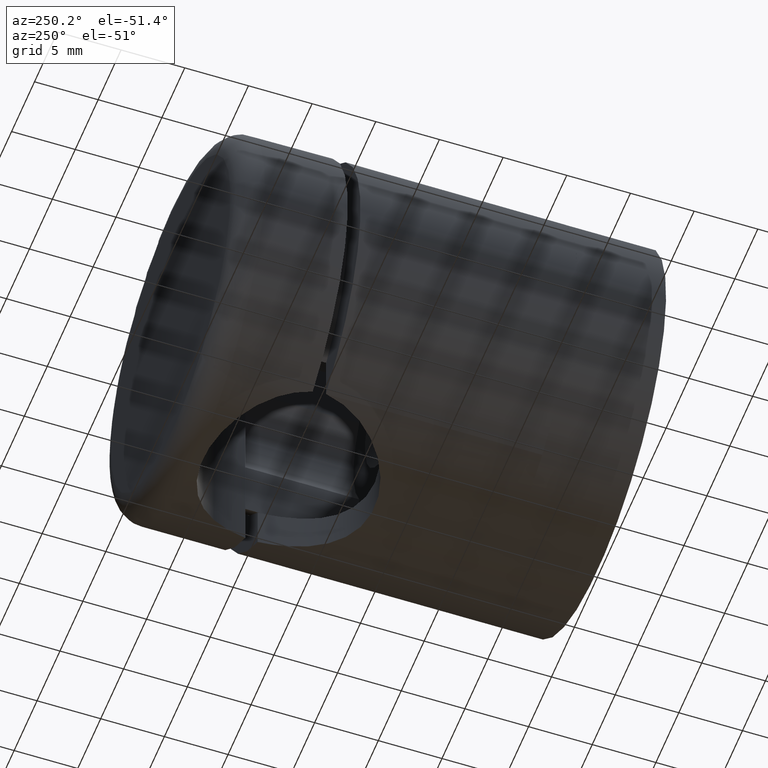
[diagram: clean part render]
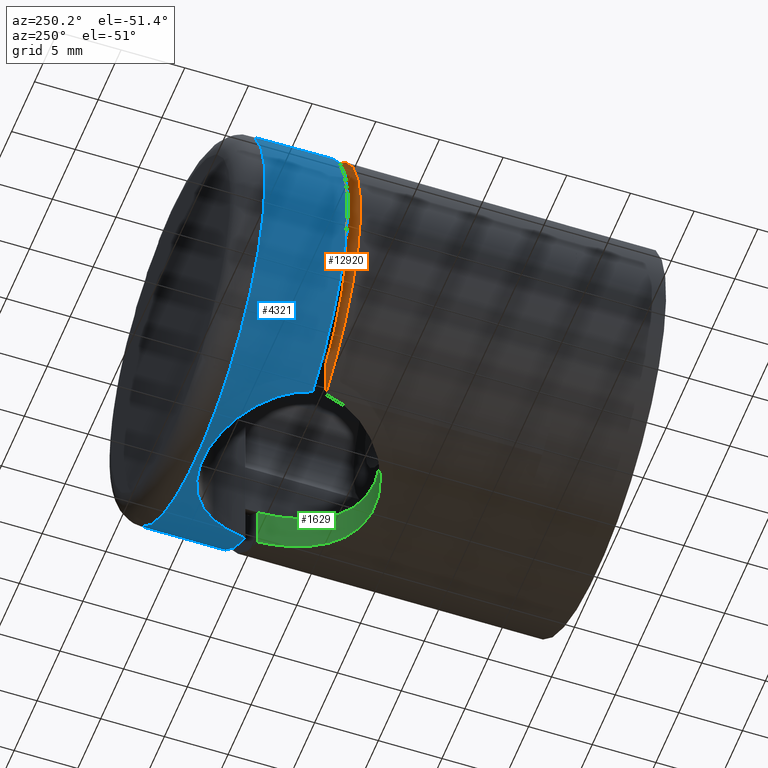
[diagram: same view with three faces highlighted in distinct colors, each labeled with its STEP entity id]
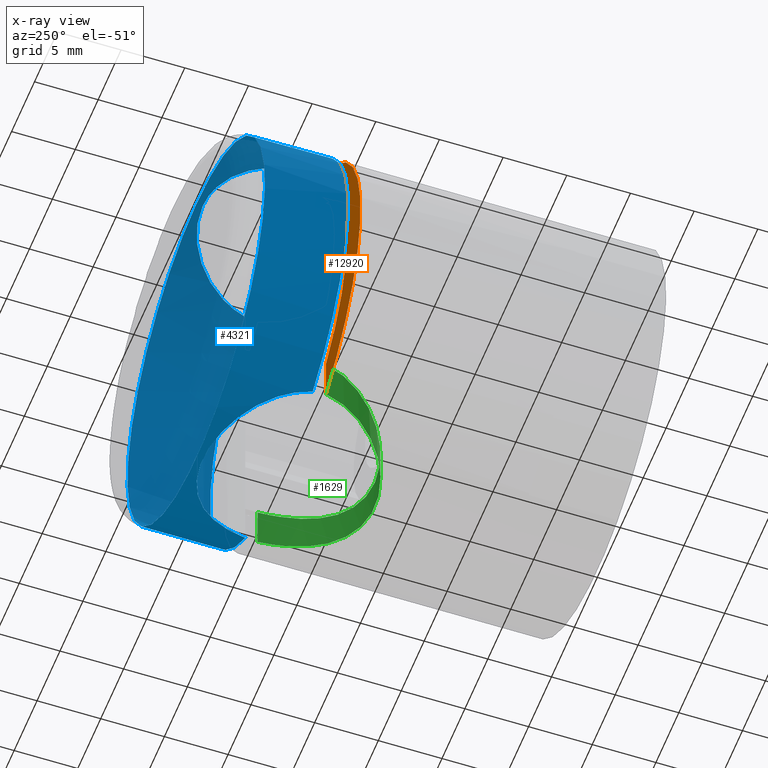
[diagram: x-ray of the same camera — body ghosted, the three highlighted faces saturated]
A machine part, auxiliary view with three faces highlighted in distinct colors.
The next image is the same camera in x-ray (body ghosted, the three faces saturated) — at least one of them is partly hidden behind the body in this view.
Their STEP definitions:

[orange] entity #12920 — the highlighted planar face has unit normal (0, -1, 0).
#237 = CARTESIAN_POINT ( 'NONE',  ( 7.433034373659253000, 0.0000000000000000000, -9.547774609824008600 ) ) ;
#570 = PLANE ( 'NONE',  #14766 ) ;
#1335 = ORIENTED_EDGE ( 'NONE', *, *, #12359, .F. ) ;
#2535 = AXIS2_PLACEMENT_3D ( 'NONE', #12595, #13933, #4831 ) ;
#2692 = DIRECTION ( 'NONE',  ( 0.0000000000000000000, 1.000000000000000000, 0.0000000000000000000 ) ) ;
#3247 = VECTOR ( 'NONE', #15234, 1000.000000000000000 ) ;
#4016 = VERTEX_POINT ( 'NONE', #12044 ) ;
#4831 = DIRECTION ( 'NONE',  ( 0.0000000000000000000, 0.0000000000000000000, 1.000000000000000000 ) ) ;
#4849 = EDGE_CURVE ( 'NONE', #15734, #11691, #14075, .T. ) ;
#5067 = DIRECTION ( 'NONE',  ( 0.0000000000000000000, 0.0000000000000000000, 1.000000000000000000 ) ) ;
#5121 = LINE ( 'NONE', #11222, #3247 ) ;
#5542 = CIRCLE ( 'NONE', #5761, 12.10000000000000000 ) ;
#5627 = VERTEX_POINT ( 'NONE', #10349 ) ;
#5761 = AXIS2_PLACEMENT_3D ( 'NONE', #9242, #2692, #5067 ) ;
#6174 = CARTESIAN_POINT ( 'NONE',  ( 7.433034373659253000, 0.0000000000000000000, -15.00000000000000000 ) ) ;
#7355 = ORIENTED_EDGE ( 'NONE', *, *, #13469, .T. ) ;
#8314 = ORIENTED_EDGE ( 'NONE', *, *, #4849, .T. ) ;
#8382 = CARTESIAN_POINT ( 'NONE',  ( 7.433034373659253000, 0.0000000000000000000, -13.02881422079538300 ) ) ;
#9242 = CARTESIAN_POINT ( 'NONE',  ( 0.0000000000000000000, 0.0000000000000000000, 0.0000000000000000000 ) ) ;
#9700 = FACE_OUTER_BOUND ( 'NONE', #11518, .T. ) ;
#10349 = CARTESIAN_POINT ( 'NONE',  ( 7.433034373659253000, 0.0000000000000000000, 13.02881422079538300 ) ) ;
#11117 = DIRECTION ( 'NONE',  ( 0.0000000000000000000, 1.000000000000000000, 0.0000000000000000000 ) ) ;
#11222 = CARTESIAN_POINT ( 'NONE',  ( 7.433034373659253000, 0.0000000000000000000, -15.00000000000000000 ) ) ;
#11327 = ORIENTED_EDGE ( 'NONE', *, *, #14505, .T. ) ;
#11518 = EDGE_LOOP ( 'NONE', ( #1335, #7355, #11327, #8314 ) ) ;
#11691 = VERTEX_POINT ( 'NONE', #8382 ) ;
#12044 = CARTESIAN_POINT ( 'NONE',  ( 7.433034373659253000, 0.0000000000000000000, 9.547774609824008600 ) ) ;
#12359 = EDGE_CURVE ( 'NONE', #5627, #11691, #12832, .T. ) ;
#12595 = CARTESIAN_POINT ( 'NONE',  ( 0.0000000000000000000, 0.0000000000000000000, 0.0000000000000000000 ) ) ;
#12832 = CIRCLE ( 'NONE', #2535, 15.00000000000000000 ) ;
#12920 = ADVANCED_FACE ( 'NONE', ( #9700 ), #570, .F. ) ;
#13469 = EDGE_CURVE ( 'NONE', #5627, #4016, #5121, .T. ) ;
#13912 = CARTESIAN_POINT ( 'NONE',  ( 0.0000000000000000000, 0.0000000000000000000, 0.0000000000000000000 ) ) ;
#13933 = DIRECTION ( 'NONE',  ( 0.0000000000000000000, 1.000000000000000000, 0.0000000000000000000 ) ) ;
#14072 = DIRECTION ( 'NONE',  ( 0.0000000000000000000, 0.0000000000000000000, -1.000000000000000000 ) ) ;
#14075 = LINE ( 'NONE', #6174, #17233 ) ;
#14505 = EDGE_CURVE ( 'NONE', #4016, #15734, #5542, .T. ) ;
#14766 = AXIS2_PLACEMENT_3D ( 'NONE', #13912, #11117, #16550 ) ;
#15234 = DIRECTION ( 'NONE',  ( 0.0000000000000000000, 0.0000000000000000000, -1.000000000000000000 ) ) ;
#15734 = VERTEX_POINT ( 'NONE', #237 ) ;
#16550 = DIRECTION ( 'NONE',  ( 0.0000000000000000000, -0.0000000000000000000, 1.000000000000000000 ) ) ;
#17233 = VECTOR ( 'NONE', #14072, 1000.000000000000000 ) ;

[blue] entity #4321 — the highlighted cylindrical surface (bore or boss wall) has radius 15 mm, axis along (-0, 1, 0).
#182 = CIRCLE ( 'NONE', #963, 15.00000000000000000 ) ;
#357 = CARTESIAN_POINT ( 'NONE',  ( -1.503368463698542500, 4.149024318443593100, 14.92601065010724400 ) ) ;
#415 = CARTESIAN_POINT ( 'NONE',  ( 4.091665013866998100, 5.200202434037516100, 14.43613998217170100 ) ) ;
#476 = CARTESIAN_POINT ( 'NONE',  ( 1.735602664208009600, 4.190829232350036900, 14.90535735084189600 ) ) ;
#652 = CARTESIAN_POINT ( 'NONE',  ( -6.821182249858579500, 8.352720284030921100, 13.36050096810895300 ) ) ;
#857 = VERTEX_POINT ( 'NONE', #2285 ) ;
#963 = AXIS2_PLACEMENT_3D ( 'NONE', #16579, #16707, #9943 ) ;
#1042 = CARTESIAN_POINT ( 'NONE',  ( -7.348469228349534500, 10.00000000000000000, -13.07669683062201900 ) ) ;
#1206 = CARTESIAN_POINT ( 'NONE',  ( -0.8834642992435368700, 4.049031959658944600, -14.97553482201362800 ) ) ;
#1425 = FACE_OUTER_BOUND ( 'NONE', #17123, .T. ) ;
#1715 = CARTESIAN_POINT ( 'NONE',  ( 5.391195892144267500, 6.281804068180195000, 13.99860655946534200 ) ) ;
#1934 = CARTESIAN_POINT ( 'NONE',  ( 6.637695323378986600, 7.982442895815287500, 13.45365277911962400 ) ) ;
#2046 = CIRCLE ( 'NONE', #16174, 15.00000000000000000 ) ;
#2079 = AXIS2_PLACEMENT_3D ( 'NONE', #4049, #10649, #6278 ) ;
#2223 = CARTESIAN_POINT ( 'NONE',  ( -6.187713023067472000, 7.256518092787146700, 13.66494846481063700 ) ) ;
#2285 = CARTESIAN_POINT ( 'NONE',  ( -7.348469228349534500, 10.00000000000000000, -13.07669683062201900 ) ) ;
#2426 = CARTESIAN_POINT ( 'NONE',  ( -5.089147811766509700, 5.986821562807338500, -14.11122082968626200 ) ) ;
#2537 = CARTESIAN_POINT ( 'NONE',  ( 6.632744577216679500, 7.973704009635684800, -13.45604824839005100 ) ) ;
#2602 = CARTESIAN_POINT ( 'NONE',  ( -1.735602664208009600, 4.190829232350036900, -14.90535735084189600 ) ) ;
#3035 = CARTESIAN_POINT ( 'NONE',  ( -2.136130340471967600, 4.307340999921611200, 14.84863497726011900 ) ) ;
#3199 = VERTEX_POINT ( 'NONE', #6427 ) ;
#3322 = CARTESIAN_POINT ( 'NONE',  ( -7.260820405374386300, 9.570610214310701000, 13.12595121702224100 ) ) ;
#3406 = EDGE_CURVE ( 'NONE', #10531, #10531, #2046, .T. ) ;
#3563 = DIRECTION ( 'NONE',  ( 0.0000000000000000000, 0.0000000000000000000, -1.000000000000000000 ) ) ;
#3690 = CARTESIAN_POINT ( 'NONE',  ( -5.947545410298660700, 6.911622975519836000, -13.77370085782294700 ) ) ;
#3735 = DIRECTION ( 'NONE',  ( -0.0000000000000000000, 1.000000000000000000, -0.0000000000000000000 ) ) ;
#3750 = CARTESIAN_POINT ( 'NONE',  ( -5.535312732355746100, 6.434978974712354500, -13.94210693859108500 ) ) ;
#3790 = VERTEX_POINT ( 'NONE', #12756 ) ;
#4049 = CARTESIAN_POINT ( 'NONE',  ( 0.0000000000000000000, 10.00000000000000000, 0.0000000000000000000 ) ) ;
#4321 = ADVANCED_FACE ( 'NONE', ( #11150, #1425 ), #7007, .T. ) ;
#4473 = CARTESIAN_POINT ( 'NONE',  ( 7.348469228349534500, 10.00000000000000000, 13.07669683062201900 ) ) ;
#4532 = CARTESIAN_POINT ( 'NONE',  ( 5.947545410298660700, 6.911622975519836000, 13.77370085782294700 ) ) ;
#4922 = VERTEX_POINT ( 'NONE', #5030 ) ;
#4952 = ORIENTED_EDGE ( 'NONE', *, *, #9870, .F. ) ;
#4981 = CARTESIAN_POINT ( 'NONE',  ( 7.348469228349534500, 10.00000000000000000, -13.07669683062201900 ) ) ;
#5030 = CARTESIAN_POINT ( 'NONE',  ( -7.348469228349534500, 10.00000000000000000, 13.07669683062201900 ) ) ;
#5094 = CARTESIAN_POINT ( 'NONE',  ( 2.953852796414887300, 4.592677594443594000, -14.71205269462441700 ) ) ;
#5812 = CARTESIAN_POINT ( 'NONE',  ( 7.137903584706025500, 9.158646184248921100, 13.19398471563887800 ) ) ;
#5863 = CARTESIAN_POINT ( 'NONE',  ( 0.8834642992435368700, 4.049031959658944600, 14.97553482201362800 ) ) ;
#5916 = CARTESIAN_POINT ( 'NONE',  ( 5.089147811766509700, 5.986821562807338500, 14.11122082968626200 ) ) ;
#6092 = CARTESIAN_POINT ( 'NONE',  ( -6.304685620014789800, 7.432389492301052900, 13.61122966543354800 ) ) ;
#6172 = CARTESIAN_POINT ( 'NONE',  ( 0.0000000000000000000, 10.00000000000000000, 0.0000000000000000000 ) ) ;
#6278 = DIRECTION ( 'NONE',  ( 0.0000000000000000000, 0.0000000000000000000, 1.000000000000000000 ) ) ;
#6305 = CARTESIAN_POINT ( 'NONE',  ( -4.091665013866998100, 5.200202434037516100, -14.43613998217170100 ) ) ;
#6361 = AXIS2_PLACEMENT_3D ( 'NONE', #6172, #13953, #3563 ) ;
#6365 = CARTESIAN_POINT ( 'NONE',  ( 6.821182249858579500, 8.352720284030921100, -13.36050096810895300 ) ) ;
#6427 = CARTESIAN_POINT ( 'NONE',  ( 7.348469228349534500, 10.00000000000000000, 13.07669683062201900 ) ) ;
#6480 = CARTESIAN_POINT ( 'NONE',  ( -2.967124902114256700, 4.598244562032042500, -14.70942925890718700 ) ) ;
#6536 = CARTESIAN_POINT ( 'NONE',  ( 6.304685620014789800, 7.432389492301052900, -13.61122966543354800 ) ) ;
#7007 = CYLINDRICAL_SURFACE ( 'NONE', #6361, 15.00000000000000000 ) ;
#7028 = CARTESIAN_POINT ( 'NONE',  ( 5.535312732355746100, 6.434978974712354500, 13.94210693859108500 ) ) ;
#7188 = CARTESIAN_POINT ( 'NONE',  ( -0.4299155408451979500, 3.999449618107980200, 15.00027519077964500 ) ) ;
#7361 = CARTESIAN_POINT ( 'NONE',  ( -4.436939118252947600, 5.438514991590970700, 14.33288927371651400 ) ) ;
#7689 = CARTESIAN_POINT ( 'NONE',  ( -3.356839989751325200, 4.779821636220034100, -14.62448239951643500 ) ) ;
#7743 = CARTESIAN_POINT ( 'NONE',  ( -0.4496013241551302700, 4.010320931071902400, -14.99483281076179800 ) ) ;
#7790 = DIRECTION ( 'NONE',  ( 0.0000000000000000000, 0.0000000000000000000, -1.000000000000000000 ) ) ;
#7804 = CARTESIAN_POINT ( 'NONE',  ( 5.389892406202992700, 6.267623265549821600, -14.00137531438221600 ) ) ;
#7861 = CARTESIAN_POINT ( 'NONE',  ( 0.8629463485866834000, 4.037214700035319100, -14.98128720299071800 ) ) ;
#8305 = CARTESIAN_POINT ( 'NONE',  ( -0.8629463485866834000, 4.037214700035319100, 14.98128720299071800 ) ) ;
#8359 = CARTESIAN_POINT ( 'NONE',  ( 4.438941530822234900, 5.439808175404243300, 14.33231411233177300 ) ) ;
#8695 = CARTESIAN_POINT ( 'NONE',  ( -5.088804720961696200, 5.974414442055158100, 14.11460981336782300 ) ) ;
#8768 = EDGE_CURVE ( 'NONE', #3199, #4922, #9900, .T. ) ;
#8932 = B_SPLINE_CURVE_WITH_KNOTS ( 'NONE', 3,
 ( #1042, #14318, #16969, #11702, #9089, #10371, #3690, #3750, #14259, #2426, #17143, #14431, #6305, #7689, #6480, #15788, #2602, #17024, #1206, #7743, #11873, #15845, #7861, #13040, #9156, #14490, #17202, #5094, #14372, #17089, #10422, #12926, #7804, #8974, #10312, #10476, #6536, #2537, #6365, #15668, #11757, #4981 ),
 .UNSPECIFIED., .F., .F.,
 ( 4, 2, 2, 2, 2, 2, 2, 2, 2, 2, 2, 2, 2, 2, 2, 2, 2, 2, 2, 2, 4 ),
 ( 0.0000000000000000000, 0.001301756880698531700, 0.002603513761397063500, 0.003905270642095594800, 0.004556149082444859800, 0.005207027522794125200, 0.006508784403492655200, 0.007810541284191185200, 0.009112298164889714300, 0.009763176605238978900, 0.01041405504558824300, 0.01171581192628677300, 0.01236669036663603500, 0.01301756880698530000, 0.01431932568768383100, 0.01562108256838236000, 0.01692283944908088900, 0.01757371788943015700, 0.01822459632977942500, 0.01952635321047796500, 0.02082811009117649700 ),
 .UNSPECIFIED. ) ;
#8974 = CARTESIAN_POINT ( 'NONE',  ( 5.805270876000206700, 6.746737260924991400, -13.83189042638145100 ) ) ;
#9089 = CARTESIAN_POINT ( 'NONE',  ( -6.637695323378986600, 7.982442895815287500, -13.45365277911962400 ) ) ;
#9156 = CARTESIAN_POINT ( 'NONE',  ( 1.715313917647930200, 4.195542834213013900, -14.90311080557749600 ) ) ;
#9406 = ORIENTED_EDGE ( 'NONE', *, *, #13150, .T. ) ;
#9654 = CARTESIAN_POINT ( 'NONE',  ( -1.715313917647930200, 4.195542834213013900, 14.90311080557749600 ) ) ;
#9716 = CARTESIAN_POINT ( 'NONE',  ( 2.967124902114256700, 4.598244562032042500, 14.70942925890718700 ) ) ;
#9870 = EDGE_CURVE ( 'NONE', #857, #4922, #17079, .T. ) ;
#9900 = B_SPLINE_CURVE_WITH_KNOTS ( 'NONE', 3,
 ( #4473, #13755, #5812, #15099, #1934, #11137, #4532, #7028, #1715, #5916, #12469, #8359, #415, #11030, #9716, #10976, #476, #13808, #5863, #16288, #15155, #7188, #8305, #357, #9654, #3035, #15388, #9993, #14040, #11257, #7361, #8695, #13984, #12717, #16697, #2223, #6092, #11372, #652, #11498, #3322, #11436 ),
 .UNSPECIFIED., .F., .F.,
 ( 4, 2, 2, 2, 2, 2, 2, 2, 2, 2, 2, 2, 2, 2, 2, 2, 2, 2, 2, 2, 4 ),
 ( 0.0000000000000000000, 0.001301756880698531700, 0.002603513761397063500, 0.003905270642095594800, 0.004556149082444859800, 0.005207027522794125200, 0.006508784403492655200, 0.007810541284191185200, 0.009112298164889714300, 0.009763176605238978900, 0.01041405504558824300, 0.01171581192628677300, 0.01236669036663603500, 0.01301756880698530000, 0.01431932568768383100, 0.01562108256838236000, 0.01692283944908088900, 0.01757371788943015700, 0.01822459632977942500, 0.01952635321047796500, 0.02082811009117649700 ),
 .UNSPECIFIED. ) ;
#9943 = DIRECTION ( 'NONE',  ( 0.0000000000000000000, 0.0000000000000000000, 1.000000000000000000 ) ) ;
#9993 = CARTESIAN_POINT ( 'NONE',  ( -2.953852796414887300, 4.592677594443594000, 14.71205269462441700 ) ) ;
#10083 = ORIENTED_EDGE ( 'NONE', *, *, #8768, .T. ) ;
#10312 = CARTESIAN_POINT ( 'NONE',  ( 5.938163276468253000, 6.913808981879903100, -13.77522507633806700 ) ) ;
#10356 = CARTESIAN_POINT ( 'NONE',  ( 0.0000000000000000000, 3.499999999999999600, 0.0000000000000000000 ) ) ;
#10371 = CARTESIAN_POINT ( 'NONE',  ( -6.195726122264456000, 7.252037546646925600, -13.66282365124465200 ) ) ;
#10422 = CARTESIAN_POINT ( 'NONE',  ( 4.436939118252947600, 5.438514991590970700, -14.33288927371651400 ) ) ;
#10476 = CARTESIAN_POINT ( 'NONE',  ( 6.187713023067472000, 7.256518092787146700, -13.66494846481063700 ) ) ;
#10531 = VERTEX_POINT ( 'NONE', #13905 ) ;
#10649 = DIRECTION ( 'NONE',  ( 0.0000000000000000000, 1.000000000000000000, 0.0000000000000000000 ) ) ;
#10917 = EDGE_CURVE ( 'NONE', #3199, #3790, #182, .T. ) ;
#10976 = CARTESIAN_POINT ( 'NONE',  ( 2.151879041696324300, 4.302259041881617600, 14.85060793023132100 ) ) ;
#11030 = CARTESIAN_POINT ( 'NONE',  ( 3.356839989751325200, 4.779821636220034100, 14.62448239951643500 ) ) ;
#11137 = CARTESIAN_POINT ( 'NONE',  ( 6.195726122264456000, 7.252037546646925600, 13.66282365124465200 ) ) ;
#11150 = FACE_OUTER_BOUND ( 'NONE', #14019, .T. ) ;
#11257 = CARTESIAN_POINT ( 'NONE',  ( -4.082777205242278400, 5.194221891219800800, 14.43874073113076800 ) ) ;
#11372 = CARTESIAN_POINT ( 'NONE',  ( -6.632744577216679500, 7.973704009635684800, 13.45604824839005100 ) ) ;
#11436 = CARTESIAN_POINT ( 'NONE',  ( -7.348469228349534500, 10.00000000000000000, 13.07669683062201900 ) ) ;
#11498 = CARTESIAN_POINT ( 'NONE',  ( -7.135461911184688900, 9.150727727493308100, 13.19532859456931300 ) ) ;
#11702 = CARTESIAN_POINT ( 'NONE',  ( -6.826745669077282300, 8.365171640292590600, -13.35763616179173100 ) ) ;
#11757 = CARTESIAN_POINT ( 'NONE',  ( 7.260820405374386300, 9.570610214310701000, -13.12595121702224100 ) ) ;
#11873 = CARTESIAN_POINT ( 'NONE',  ( -0.2292027804511727300, 4.000284209630097000, -14.99985789526948700 ) ) ;
#12469 = CARTESIAN_POINT ( 'NONE',  ( 4.930451165110186600, 5.844411345871896500, 14.16758655313650600 ) ) ;
#12717 = CARTESIAN_POINT ( 'NONE',  ( -5.805270876000206700, 6.746737260924991400, 13.83189042638145100 ) ) ;
#12756 = CARTESIAN_POINT ( 'NONE',  ( 7.348469228349534500, 10.00000000000000000, -13.07669683062201900 ) ) ;
#12926 = CARTESIAN_POINT ( 'NONE',  ( 5.088804720961696200, 5.974414442055158100, -14.11460981336782300 ) ) ;
#13040 = CARTESIAN_POINT ( 'NONE',  ( 1.503368463698542500, 4.149024318443593100, -14.92601065010724400 ) ) ;
#13150 = EDGE_CURVE ( 'NONE', #857, #3790, #8932, .T. ) ;
#13244 = ORIENTED_EDGE ( 'NONE', *, *, #10917, .F. ) ;
#13755 = CARTESIAN_POINT ( 'NONE',  ( 7.260833010109225300, 9.570671964648120400, 13.12594413377274600 ) ) ;
#13808 = CARTESIAN_POINT ( 'NONE',  ( 1.098138055368054600, 4.077691309907600600, 14.96126971224127400 ) ) ;
#13905 = CARTESIAN_POINT ( 'NONE',  ( 0.0000000000000000000, 3.499999999999999600, -15.00000000000000000 ) ) ;
#13953 = DIRECTION ( 'NONE',  ( -0.0000000000000000000, -1.000000000000000000, -0.0000000000000000000 ) ) ;
#13984 = CARTESIAN_POINT ( 'NONE',  ( -5.389892406202992700, 6.267623265549821600, 14.00137531438221600 ) ) ;
#14019 = EDGE_LOOP ( 'NONE', ( #14997 ) ) ;
#14040 = CARTESIAN_POINT ( 'NONE',  ( -3.341580474148961400, 4.772017598149954400, 14.62806014286402400 ) ) ;
#14259 = CARTESIAN_POINT ( 'NONE',  ( -5.391195892144267500, 6.281804068180195000, -13.99860655946534200 ) ) ;
#14318 = CARTESIAN_POINT ( 'NONE',  ( -7.260833010109225300, 9.570671964648120400, -13.12594413377274600 ) ) ;
#14372 = CARTESIAN_POINT ( 'NONE',  ( 3.341580474148961400, 4.772017598149954400, -14.62806014286402400 ) ) ;
#14431 = CARTESIAN_POINT ( 'NONE',  ( -4.438941530822234900, 5.439808175404243300, -14.33231411233177300 ) ) ;
#14490 = CARTESIAN_POINT ( 'NONE',  ( 2.136130340471967600, 4.307340999921611200, -14.84863497726011900 ) ) ;
#14997 = ORIENTED_EDGE ( 'NONE', *, *, #3406, .T. ) ;
#15099 = CARTESIAN_POINT ( 'NONE',  ( 6.826745669077282300, 8.365171640292590600, 13.35763616179173100 ) ) ;
#15155 = CARTESIAN_POINT ( 'NONE',  ( 0.2292027804511727300, 4.000284209630097000, 14.99985789526948700 ) ) ;
#15388 = CARTESIAN_POINT ( 'NONE',  ( -2.344838727435110600, 4.372706079330115800, 14.81702286393572100 ) ) ;
#15668 = CARTESIAN_POINT ( 'NONE',  ( 7.135461911184688900, 9.150727727493308100, -13.19532859456931300 ) ) ;
#15788 = CARTESIAN_POINT ( 'NONE',  ( -2.151879041696324300, 4.302259041881617600, -14.85060793023132100 ) ) ;
#15845 = CARTESIAN_POINT ( 'NONE',  ( 0.4299155408451979500, 3.999449618107980200, -15.00027519077964500 ) ) ;
#16174 = AXIS2_PLACEMENT_3D ( 'NONE', #10356, #3735, #7790 ) ;
#16288 = CARTESIAN_POINT ( 'NONE',  ( 0.4496013241551302700, 4.010320931071902400, 14.99483281076179800 ) ) ;
#16579 = CARTESIAN_POINT ( 'NONE',  ( 0.0000000000000000000, 10.00000000000000000, 0.0000000000000000000 ) ) ;
#16697 = CARTESIAN_POINT ( 'NONE',  ( -5.938163276468253000, 6.913808981879903100, 13.77522507633806700 ) ) ;
#16707 = DIRECTION ( 'NONE',  ( 0.0000000000000000000, 1.000000000000000000, 0.0000000000000000000 ) ) ;
#16969 = CARTESIAN_POINT ( 'NONE',  ( -7.137903584706025500, 9.158646184248921100, -13.19398471563887800 ) ) ;
#17024 = CARTESIAN_POINT ( 'NONE',  ( -1.098138055368054600, 4.077691309907600600, -14.96126971224127400 ) ) ;
#17079 = CIRCLE ( 'NONE', #2079, 15.00000000000000000 ) ;
#17089 = CARTESIAN_POINT ( 'NONE',  ( 4.082777205242278400, 5.194221891219800800, -14.43874073113076800 ) ) ;
#17123 = EDGE_LOOP ( 'NONE', ( #13244, #10083, #4952, #9406 ) ) ;
#17143 = CARTESIAN_POINT ( 'NONE',  ( -4.930451165110186600, 5.844411345871896500, -14.16758655313650600 ) ) ;
#17202 = CARTESIAN_POINT ( 'NONE',  ( 2.344838727435110600, 4.372706079330115800, -14.81702286393572100 ) ) ;

[green] entity #1629 — the highlighted cylindrical surface (partial cylindrical patch) has radius 7.5 mm, axis along (0, 0, 1).
#237 = CARTESIAN_POINT ( 'NONE',  ( 7.433034373659253000, 0.0000000000000000000, -9.547774609824008600 ) ) ;
#396 = CARTESIAN_POINT ( 'NONE',  ( -4.260027718222359800, 5.188958396447426400, -14.38784380773072200 ) ) ;
#455 = CARTESIAN_POINT ( 'NONE',  ( -0.9018572914626914500, 6.459649908640918700, -14.97969362655243900 ) ) ;
#567 = CARTESIAN_POINT ( 'NONE',  ( 3.504591401709834700, 5.645732149465732000, -14.59016996309915500 ) ) ;
#638 = CARTESIAN_POINT ( 'NONE',  ( 0.4724070979116879500, 6.499340823553638700, -12.09959141980714400 ) ) ;
#697 = CARTESIAN_POINT ( 'NONE',  ( -5.290419277999674800, 4.320701883502318100, -10.88348276438546800 ) ) ;
#757 = CARTESIAN_POINT ( 'NONE',  ( -7.267667455086091800, 0.9061549685232079800, -9.675795716198994300 ) ) ;
#1067 = B_SPLINE_CURVE_WITH_KNOTS ( 'NONE', 3,
 ( #2924, #8294, #2974, #9643, #12184, #7018, #9589, #1702, #3026, #13641, #3078, #12351, #3311, #3249, #15145, #15202, #12517, #8688, #638, #7125, #1867, #5909, #11303, #5964, #13975, #16626, #7237, #9816, #9862, #10037, #2094, #2035, #697, #13920, #13799, #11192, #16560, #11247, #4582, #14029, #9982, #757, #16442, #12580 ),
 .UNSPECIFIED., .F., .F.,
 ( 4, 2, 2, 2, 2, 2, 2, 2, 2, 2, 2, 2, 2, 2, 2, 2, 2, 2, 2, 2, 2, 4 ),
 ( 0.0000000000000000000, 0.001381553282009188100, 0.002072329923013783400, 0.002763106564018378900, 0.004144659846027567600, 0.005526213128036757700, 0.006907766410045946900, 0.008289319692055137000, 0.009670872974064328000, 0.01105242625607351700, 0.01243397953808270600, 0.01312475617908730200, 0.01381553282009189900, 0.01450630946109649500, 0.01519708610210109200, 0.01657863938411028100, 0.01726941602511487500, 0.01796019266611947200, 0.01934174594812865600, 0.02003252258913325300, 0.02072329923013784700, 0.02210485251214703400 ),
 .UNSPECIFIED. ) ;
#1629 = ADVANCED_FACE ( 'NONE', ( #14197 ), #12751, .F. ) ;
#1691 = ORIENTED_EDGE ( 'NONE', *, *, #15786, .T. ) ;
#1702 = CARTESIAN_POINT ( 'NONE',  ( 6.387786704836729600, 2.955174478734803300, -10.27957127954841500 ) ) ;
#1795 = ORIENTED_EDGE ( 'NONE', *, *, #5276, .F. ) ;
#1799 = CARTESIAN_POINT ( 'NONE',  ( 3.094862868402032500, 5.846461942668952400, -14.68346410378049400 ) ) ;
#1857 = VECTOR ( 'NONE', #5713, 1000.000000000000000 ) ;
#1867 = CARTESIAN_POINT ( 'NONE',  ( -0.9103202596978043900, 6.459001097932526700, -12.07444560178374700 ) ) ;
#1914 = CARTESIAN_POINT ( 'NONE',  ( 5.285270702362500300, 4.339607343499515900, -14.04242242306369600 ) ) ;
#1971 = CARTESIAN_POINT ( 'NONE',  ( -7.269481033751776300, 0.8996623349596458700, -13.12174029126060900 ) ) ;
#2035 = CARTESIAN_POINT ( 'NONE',  ( -5.130938656266875100, 4.474663636909650900, -10.95975385441399100 ) ) ;
#2094 = CARTESIAN_POINT ( 'NONE',  ( -4.635964713893531400, 4.911998384491692300, -11.18252097455661700 ) ) ;
#2203 = CARTESIAN_POINT ( 'NONE',  ( -7.433034373659253000, 0.0000000000000000000, -13.02881422079538300 ) ) ;
#2469 = LINE ( 'NONE', #9552, #1857 ) ;
#2924 = CARTESIAN_POINT ( 'NONE',  ( 7.433034373659253000, 0.0000000000000000000, -9.547774609824008600 ) ) ;
#2974 = CARTESIAN_POINT ( 'NONE',  ( 7.267922950506672000, 0.9050391060404532300, -9.675597607765430700 ) ) ;
#3026 = CARTESIAN_POINT ( 'NONE',  ( 6.146124214716414800, 3.320516346761881900, -10.42746976591293300 ) ) ;
#3069 = CARTESIAN_POINT ( 'NONE',  ( -2.875204067168545900, 5.930645071967627600, -14.72341298700827900 ) ) ;
#3078 = CARTESIAN_POINT ( 'NONE',  ( 5.296296914780158200, 4.328320597424202300, -10.88525027621322900 ) ) ;
#3236 = CARTESIAN_POINT ( 'NONE',  ( 0.9279062625338172500, 6.456243521407138500, -14.97799446027686100 ) ) ;
#3249 = CARTESIAN_POINT ( 'NONE',  ( 3.530245071645919300, 5.632074385772681600, -11.58048386309773300 ) ) ;
#3299 = CARTESIAN_POINT ( 'NONE',  ( -6.141799977416648700, 3.327106789183706900, -13.68824020750751000 ) ) ;
#3311 = CARTESIAN_POINT ( 'NONE',  ( 4.287906709055678600, 5.169351422859433500, -11.32184140605151700 ) ) ;
#3357 = CARTESIAN_POINT ( 'NONE',  ( -6.385256789243127800, 2.959327451426121000, -13.57512415531077800 ) ) ;
#3522 = CARTESIAN_POINT ( 'NONE',  ( -6.808414343375437400, 2.176991070354392700, -13.36790911943963400 ) ) ;
#4180 = VERTEX_POINT ( 'NONE', #9842 ) ;
#4341 = CARTESIAN_POINT ( 'NONE',  ( 1.821521555345696300, 6.289625278845708300, -14.89575064599112000 ) ) ;
#4582 = CARTESIAN_POINT ( 'NONE',  ( -6.801216285787243800, 2.169182870913697300, -10.00824997548193800 ) ) ;
#4605 = CARTESIAN_POINT ( 'NONE',  ( -7.433034373659253000, 0.0000000000000000000, -9.547774609824008600 ) ) ;
#4849 = EDGE_CURVE ( 'NONE', #15734, #11691, #14075, .T. ) ;
#5276 = EDGE_CURVE ( 'NONE', #11691, #4180, #6928, .T. ) ;
#5684 = CARTESIAN_POINT ( 'NONE',  ( 6.805214662091630700, 2.160606788052258100, -13.36783318095569400 ) ) ;
#5713 = DIRECTION ( 'NONE',  ( -0.0000000000000000000, -0.0000000000000000000, 1.000000000000000000 ) ) ;
#5794 = CARTESIAN_POINT ( 'NONE',  ( 6.982046201704013900, 1.747983388432222000, -13.27633011747889900 ) ) ;
#5899 = CARTESIAN_POINT ( 'NONE',  ( -1.577532041899896800, 6.335790583856103300, -14.91852990702046900 ) ) ;
#5909 = CARTESIAN_POINT ( 'NONE',  ( -1.594801879411987800, 6.332151938821762200, -11.99663856489961900 ) ) ;
#5964 = CARTESIAN_POINT ( 'NONE',  ( -2.261244462426558000, 6.154660321585917700, -11.88893204261424000 ) ) ;
#6174 = CARTESIAN_POINT ( 'NONE',  ( 7.433034373659253000, 0.0000000000000000000, -15.00000000000000000 ) ) ;
#6481 = ORIENTED_EDGE ( 'NONE', *, *, #10893, .F. ) ;
#6928 = B_SPLINE_CURVE_WITH_KNOTS ( 'NONE', 3,
 ( #11063, #7113, #9693, #12396, #5794, #5684, #8505, #16434, #13626, #15077, #1914, #9804, #12283, #567, #1799, #9852, #4341, #3236, #9750, #12507, #455, #5899, #15191, #7226, #14969, #3069, #7006, #8342, #16375, #396, #12339, #13682, #11411, #3299, #3357, #3522, #12817, #1971, #12694, #2203 ),
 .UNSPECIFIED., .F., .F.,
 ( 4, 2, 2, 2, 2, 2, 2, 2, 2, 2, 2, 2, 2, 2, 2, 2, 2, 2, 2, 4 ),
 ( 0.0000000000000000000, 0.001365088356597057400, 0.002047632534895586800, 0.002730176713194116600, 0.004095265069791177000, 0.005460353426388237500, 0.006825441782985297100, 0.008190530139582357500, 0.009555618496179420600, 0.01092070685277648400, 0.01228579520937354500, 0.01296833938767207700, 0.01365088356597060800, 0.01433342774426913900, 0.01501597192256766900, 0.01638106027916473200, 0.01774614863576179000, 0.01911123699235885200, 0.02047632534895591300, 0.02184141370555297800 ),
 .UNSPECIFIED. ) ;
#7006 = CARTESIAN_POINT ( 'NONE',  ( -3.081357233003476200, 5.841471669872911200, -14.68155682345833500 ) ) ;
#7018 = CARTESIAN_POINT ( 'NONE',  ( 6.802467336872967800, 2.166474150760043600, -10.00739717905748100 ) ) ;
#7113 = CARTESIAN_POINT ( 'NONE',  ( 7.371552118982877200, 0.4569997123795623800, -13.06389029944958000 ) ) ;
#7125 = CARTESIAN_POINT ( 'NONE',  ( -0.4512396511243006400, 6.500644241078809700, -12.10039932273647000 ) ) ;
#7226 = CARTESIAN_POINT ( 'NONE',  ( -2.239964844302980000, 6.161301238690727500, -14.83345438271954800 ) ) ;
#7237 = CARTESIAN_POINT ( 'NONE',  ( -3.106584920228745900, 5.830092861634216000, -11.69630516733490600 ) ) ;
#8294 = CARTESIAN_POINT ( 'NONE',  ( 7.370873389609881700, 0.4620447311394678700, -9.596167533832090900 ) ) ;
#8342 = CARTESIAN_POINT ( 'NONE',  ( -3.485431127852573100, 5.644717214453359100, -14.59090960189991300 ) ) ;
#8382 = CARTESIAN_POINT ( 'NONE',  ( 7.433034373659253000, 0.0000000000000000000, -13.02881422079538300 ) ) ;
#8505 = CARTESIAN_POINT ( 'NONE',  ( 6.706805909233553500, 2.364343839977608200, -13.41762833829743700 ) ) ;
#8688 = CARTESIAN_POINT ( 'NONE',  ( 0.9427413185010404800, 6.454649923841113700, -12.07175497352462700 ) ) ;
#8792 = CARTESIAN_POINT ( 'NONE',  ( 0.0000000000000000000, -1.000000000000000900, -15.00000000000000000 ) ) ;
#9552 = CARTESIAN_POINT ( 'NONE',  ( -7.433034373659253000, 0.0000000000000000000, -15.00000000000000000 ) ) ;
#9589 = CARTESIAN_POINT ( 'NONE',  ( 6.704379315736642500, 2.369065749826449400, -10.07358670783023800 ) ) ;
#9643 = CARTESIAN_POINT ( 'NONE',  ( 7.058358826263528000, 1.545592304792543900, -9.828379518017310800 ) ) ;
#9693 = CARTESIAN_POINT ( 'NONE',  ( 7.269735469085090600, 0.8980109817158853400, -13.12158371556265000 ) ) ;
#9750 = CARTESIAN_POINT ( 'NONE',  ( 0.4638388370897875700, 6.499530614790875100, -14.99976530748668700 ) ) ;
#9804 = CARTESIAN_POINT ( 'NONE',  ( 4.621271761972298700, 4.923625602787772900, -14.27471755261766800 ) ) ;
#9816 = CARTESIAN_POINT ( 'NONE',  ( -3.512054756203036200, 5.630724677934601600, -11.58101445571368900 ) ) ;
#9842 = CARTESIAN_POINT ( 'NONE',  ( -7.433034373659253000, 0.0000000000000000000, -13.02881422079538300 ) ) ;
#9852 = CARTESIAN_POINT ( 'NONE',  ( 2.254629813134045900, 6.167207385889926600, -14.83573182107816300 ) ) ;
#9862 = CARTESIAN_POINT ( 'NONE',  ( -3.710195494336569100, 5.521823509179438500, -11.51889478967124000 ) ) ;
#9982 = CARTESIAN_POINT ( 'NONE',  ( -7.057675012871475100, 1.547514016276543100, -9.828872094880608800 ) ) ;
#10037 = CARTESIAN_POINT ( 'NONE',  ( -4.281616437942682700, 5.173871608858009500, -11.32429740889832500 ) ) ;
#10893 = EDGE_CURVE ( 'NONE', #4180, #10997, #2469, .T. ) ;
#10997 = VERTEX_POINT ( 'NONE', #4605 ) ;
#11063 = CARTESIAN_POINT ( 'NONE',  ( 7.433034373659253000, 0.0000000000000000000, -13.02881422079538300 ) ) ;
#11192 = CARTESIAN_POINT ( 'NONE',  ( -6.144316000566987200, 3.322991934113022500, -10.42851796852745100 ) ) ;
#11235 = AXIS2_PLACEMENT_3D ( 'NONE', #8792, #12688, #12865 ) ;
#11247 = CARTESIAN_POINT ( 'NONE',  ( -6.702901141645744700, 2.372009956687625400, -10.07457193972448700 ) ) ;
#11303 = CARTESIAN_POINT ( 'NONE',  ( -1.820740294575647500, 6.279237296299610800, -11.96431512509023400 ) ) ;
#11411 = CARTESIAN_POINT ( 'NONE',  ( -5.590732769843328700, 4.018891035258167000, -13.92240403225032700 ) ) ;
#11691 = VERTEX_POINT ( 'NONE', #8382 ) ;
#12184 = CARTESIAN_POINT ( 'NONE',  ( 6.979226702225446400, 1.755088937874512000, -9.884935751312431400 ) ) ;
#12283 = CARTESIAN_POINT ( 'NONE',  ( 4.265662807184604300, 5.184823159216672500, -14.38608151167166600 ) ) ;
#12339 = CARTESIAN_POINT ( 'NONE',  ( -4.617013203556878900, 4.926937240679813500, -14.27609805589279900 ) ) ;
#12351 = CARTESIAN_POINT ( 'NONE',  ( 4.640208607627381600, 4.908487579418744100, -11.18069312086736200 ) ) ;
#12396 = CARTESIAN_POINT ( 'NONE',  ( 7.061022049355219800, 1.538177000883971900, -13.23435759178614600 ) ) ;
#12507 = CARTESIAN_POINT ( 'NONE',  ( -0.4485332192687759800, 6.500461576475863100, -15.00023078814744600 ) ) ;
#12517 = CARTESIAN_POINT ( 'NONE',  ( 1.844509065358021800, 6.284116486468724000, -11.96719748488499000 ) ) ;
#12580 = CARTESIAN_POINT ( 'NONE',  ( -7.433034373659253000, 0.0000000000000000000, -9.547774609824008600 ) ) ;
#12688 = DIRECTION ( 'NONE',  ( -0.0000000000000000000, -0.0000000000000000000, 1.000000000000000000 ) ) ;
#12694 = CARTESIAN_POINT ( 'NONE',  ( -7.371539659904849300, 0.4570923211348388900, -13.06389740744527500 ) ) ;
#12751 = CYLINDRICAL_SURFACE ( 'NONE', #11235, 7.500000000000000000 ) ;
#12817 = CARTESIAN_POINT ( 'NONE',  ( -6.988910178478321600, 1.758478929428913600, -13.27330242586715900 ) ) ;
#12865 = DIRECTION ( 'NONE',  ( 1.000000000000000000, 0.0000000000000000000, 0.0000000000000000000 ) ) ;
#13626 = CARTESIAN_POINT ( 'NONE',  ( 6.144177921718754700, 3.323663733529298400, -13.68715879355192500 ) ) ;
#13641 = CARTESIAN_POINT ( 'NONE',  ( 5.601634317130489600, 4.006335720115676400, -10.72980249393706000 ) ) ;
#13682 = CARTESIAN_POINT ( 'NONE',  ( -5.281274963558811200, 4.343550386780559200, -14.04392827461645300 ) ) ;
#13799 = CARTESIAN_POINT ( 'NONE',  ( -5.736684297029831300, 3.836132015414672700, -10.65479257470046900 ) ) ;
#13920 = CARTESIAN_POINT ( 'NONE',  ( -5.593216513542786900, 4.001433164880639400, -10.73101403653626200 ) ) ;
#13975 = CARTESIAN_POINT ( 'NONE',  ( -2.476931936827229100, 6.082799924265901700, -11.84574986285529800 ) ) ;
#14029 = CARTESIAN_POINT ( 'NONE',  ( -6.978373296587281300, 1.757275678786579300, -9.885540788002922200 ) ) ;
#14072 = DIRECTION ( 'NONE',  ( 0.0000000000000000000, 0.0000000000000000000, -1.000000000000000000 ) ) ;
#14075 = LINE ( 'NONE', #6174, #17233 ) ;
#14197 = FACE_OUTER_BOUND ( 'NONE', #16870, .T. ) ;
#14969 = CARTESIAN_POINT ( 'NONE',  ( -2.454507526441689300, 6.090559381606842000, -14.79936083810742400 ) ) ;
#15077 = CARTESIAN_POINT ( 'NONE',  ( 5.594357989546198300, 4.014793026553872900, -13.92093376388389500 ) ) ;
#15145 = CARTESIAN_POINT ( 'NONE',  ( 3.120889328124960100, 5.834713795883161900, -11.69855704201667200 ) ) ;
#15191 = CARTESIAN_POINT ( 'NONE',  ( -1.802127842783203000, 6.283818584592300900, -14.89298984979847700 ) ) ;
#15202 = CARTESIAN_POINT ( 'NONE',  ( 2.279664997857652000, 6.159356840358118000, -11.89114437559585200 ) ) ;
#15734 = VERTEX_POINT ( 'NONE', #237 ) ;
#15786 = EDGE_CURVE ( 'NONE', #15734, #10997, #1067, .T. ) ;
#16375 = CARTESIAN_POINT ( 'NONE',  ( -3.684249379242929400, 5.536556207957905200, -14.54186294497605700 ) ) ;
#16434 = CARTESIAN_POINT ( 'NONE',  ( 6.388103578211718600, 2.955041413808474600, -13.57380254716004900 ) ) ;
#16442 = CARTESIAN_POINT ( 'NONE',  ( -7.370797457541449700, 0.4626091368141630500, -9.596226647677745800 ) ) ;
#16560 = CARTESIAN_POINT ( 'NONE',  ( -6.385953543325390700, 2.958148152001800900, -10.28071647677968600 ) ) ;
#16626 = CARTESIAN_POINT ( 'NONE',  ( -2.899602612185831200, 5.920516691567248000, -11.74943770247820000 ) ) ;
#16870 = EDGE_LOOP ( 'NONE', ( #16963, #1691, #6481, #1795 ) ) ;
#16963 = ORIENTED_EDGE ( 'NONE', *, *, #4849, .F. ) ;
#17233 = VECTOR ( 'NONE', #14072, 1000.000000000000000 ) ;